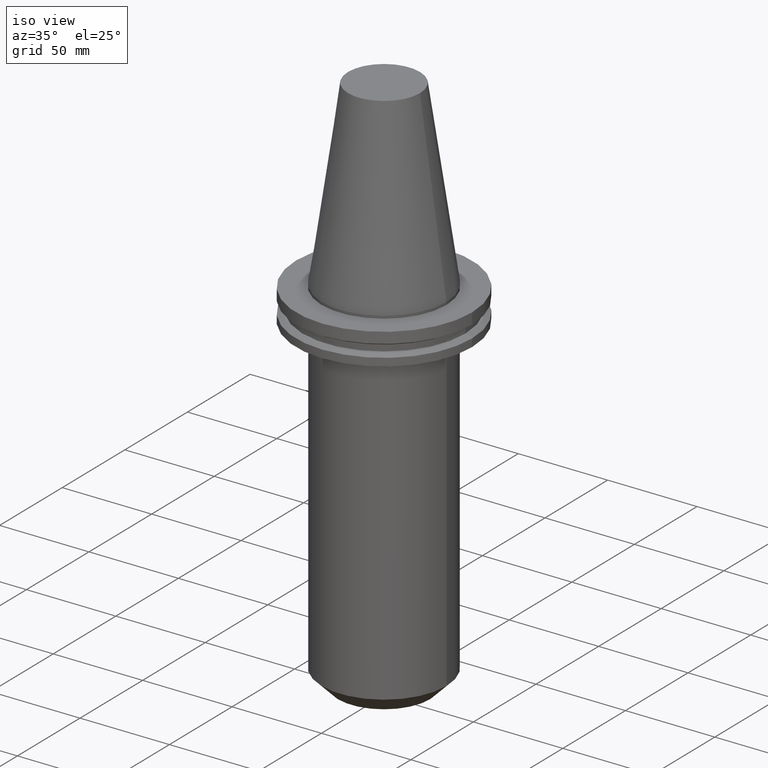
[diagram: clean part render]
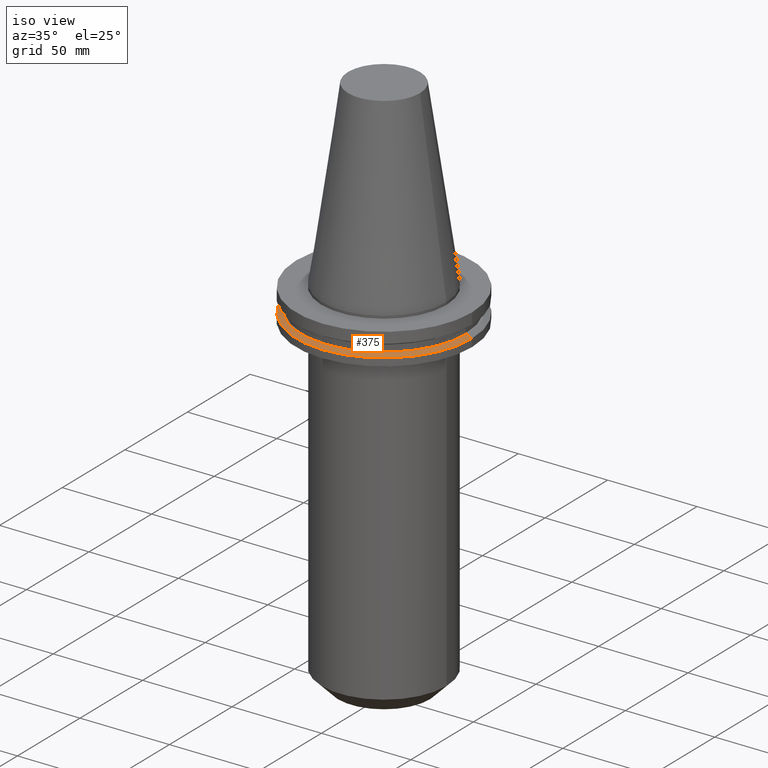
[diagram: same view with one face highlighted and labeled with its STEP entity id]
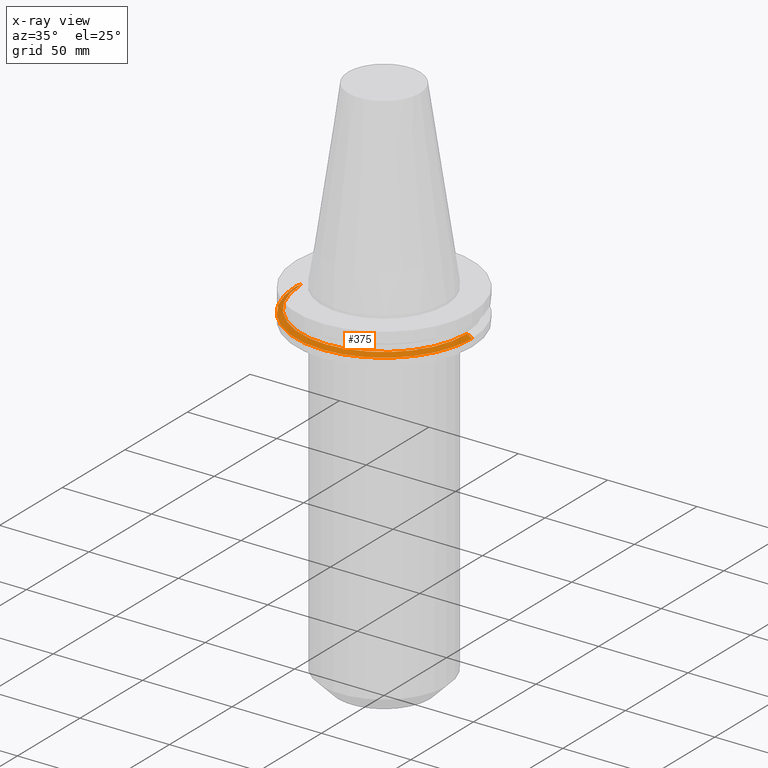
[diagram: x-ray of the same camera — body ghosted, the highlighted face saturated]
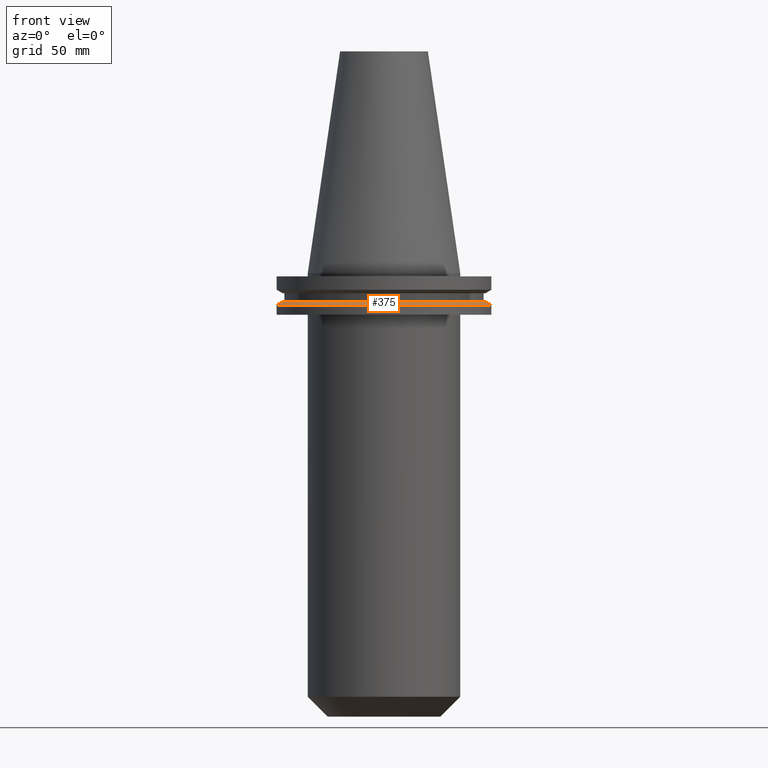
[diagram: same view with one face highlighted and labeled with its STEP entity id]
A machine part, iso view. The second image highlights one B-rep face of the part: STEP entity #375.
The next image is the same camera in x-ray: the body ghosted, the highlighted face saturated — about 0% of this face is hidden behind the body in this view.
A second angle (front view) of the same face is appended — the face is thin or edge-on in the first view.
In plain terms, the highlighted conical surface has half-angle 60 deg.
Its self-contained STEP definition (entity closure, byte-faithful):
#4 = CIRCLE ( 'NONE', #109, 46.43919780457007818 ) ;
#8 = CARTESIAN_POINT ( 'NONE',  ( 0.000000000000000000, 0.000000000000000000, -14.65761014474876944 ) ) ;
#31 = DIRECTION ( 'NONE',  ( -0.000000000000000000, -0.000000000000000000, 1.000000000000000000 ) ) ;
#33 = DIRECTION ( 'NONE',  ( -0.8660254037844169472, 0.000000000000000000, -0.5000000000000375255 ) ) ;
#58 = CIRCLE ( 'NONE', #493, 49.21499999999998920 ) ;
#67 = CARTESIAN_POINT ( 'NONE',  ( 46.43919780457007818, 5.857130358318725715E-15, -13.05499999999999794 ) ) ;
#70 = CARTESIAN_POINT ( 'NONE',  ( 49.21499999999998920, 6.027099222003697037E-15, -14.65761014474876944 ) ) ;
#109 = AXIS2_PLACEMENT_3D ( 'NONE', #554, #31, #265 ) ;
#129 = DIRECTION ( 'NONE',  ( 0.8660254037844169472, 1.060575238724880168E-16, -0.5000000000000375255 ) ) ;
#138 = VERTEX_POINT ( 'NONE', #67 ) ;
#163 = CARTESIAN_POINT ( 'NONE',  ( 0.000000000000000000, 0.000000000000000000, -14.65761014474876944 ) ) ;
#171 = VERTEX_POINT ( 'NONE', #727 ) ;
#180 = EDGE_CURVE ( 'NONE', #741, #171, #58, .T. ) ;
#191 = CARTESIAN_POINT ( 'NONE',  ( -49.21499999999998920, 0.000000000000000000, -14.65761014474876944 ) ) ;
#195 = LINE ( 'NONE', #191, #457 ) ;
#215 = ORIENTED_EDGE ( 'NONE', *, *, #330, .F. ) ;
#229 = DIRECTION ( 'NONE',  ( 0.000000000000000000, 0.000000000000000000, -1.000000000000000000 ) ) ;
#247 = DIRECTION ( 'NONE',  ( -0.000000000000000000, -0.000000000000000000, 1.000000000000000000 ) ) ;
#265 = DIRECTION ( 'NONE',  ( 1.000000000000000000, 0.000000000000000000, 0.000000000000000000 ) ) ;
#270 = VECTOR ( 'NONE', #129, 1000.000000000000114 ) ;
#277 = DIRECTION ( 'NONE',  ( -1.000000000000000000, 0.000000000000000000, 0.000000000000000000 ) ) ;
#330 = EDGE_CURVE ( 'NONE', #452, #138, #4, .T. ) ;
#347 = LINE ( 'NONE', #70, #270 ) ;
#375 = ADVANCED_FACE ( 'NONE', ( #470 ), #513, .T. ) ;
#452 = VERTEX_POINT ( 'NONE', #767 ) ;
#457 = VECTOR ( 'NONE', #33, 1000.000000000000114 ) ;
#470 = FACE_OUTER_BOUND ( 'NONE', #484, .T. ) ;
#484 = EDGE_LOOP ( 'NONE', ( #570, #215, #620, #574 ) ) ;
#493 = AXIS2_PLACEMENT_3D ( 'NONE', #8, #247, #599 ) ;
#505 = AXIS2_PLACEMENT_3D ( 'NONE', #163, #229, #277 ) ;
#513 = CONICAL_SURFACE ( 'NONE', #505, 49.21499999999998920, 1.047197551196554333 ) ;
#554 = CARTESIAN_POINT ( 'NONE',  ( 0.000000000000000000, 0.000000000000000000, -13.05499999999999794 ) ) ;
#559 = EDGE_CURVE ( 'NONE', #138, #171, #347, .T. ) ;
#570 = ORIENTED_EDGE ( 'NONE', *, *, #559, .F. ) ;
#574 = ORIENTED_EDGE ( 'NONE', *, *, #180, .T. ) ;
#599 = DIRECTION ( 'NONE',  ( 1.000000000000000000, 0.000000000000000000, 0.000000000000000000 ) ) ;
#611 = CARTESIAN_POINT ( 'NONE',  ( -49.21499999999998920, 6.027099222003697037E-15, -14.65761014474876944 ) ) ;
#620 = ORIENTED_EDGE ( 'NONE', *, *, #738, .T. ) ;
#727 = CARTESIAN_POINT ( 'NONE',  ( 49.21499999999998920, 0.000000000000000000, -14.65761014474876944 ) ) ;
#738 = EDGE_CURVE ( 'NONE', #452, #741, #195, .T. ) ;
#741 = VERTEX_POINT ( 'NONE', #611 ) ;
#767 = CARTESIAN_POINT ( 'NONE',  ( -46.43919780457007818, 0.000000000000000000, -13.05499999999999794 ) ) ;